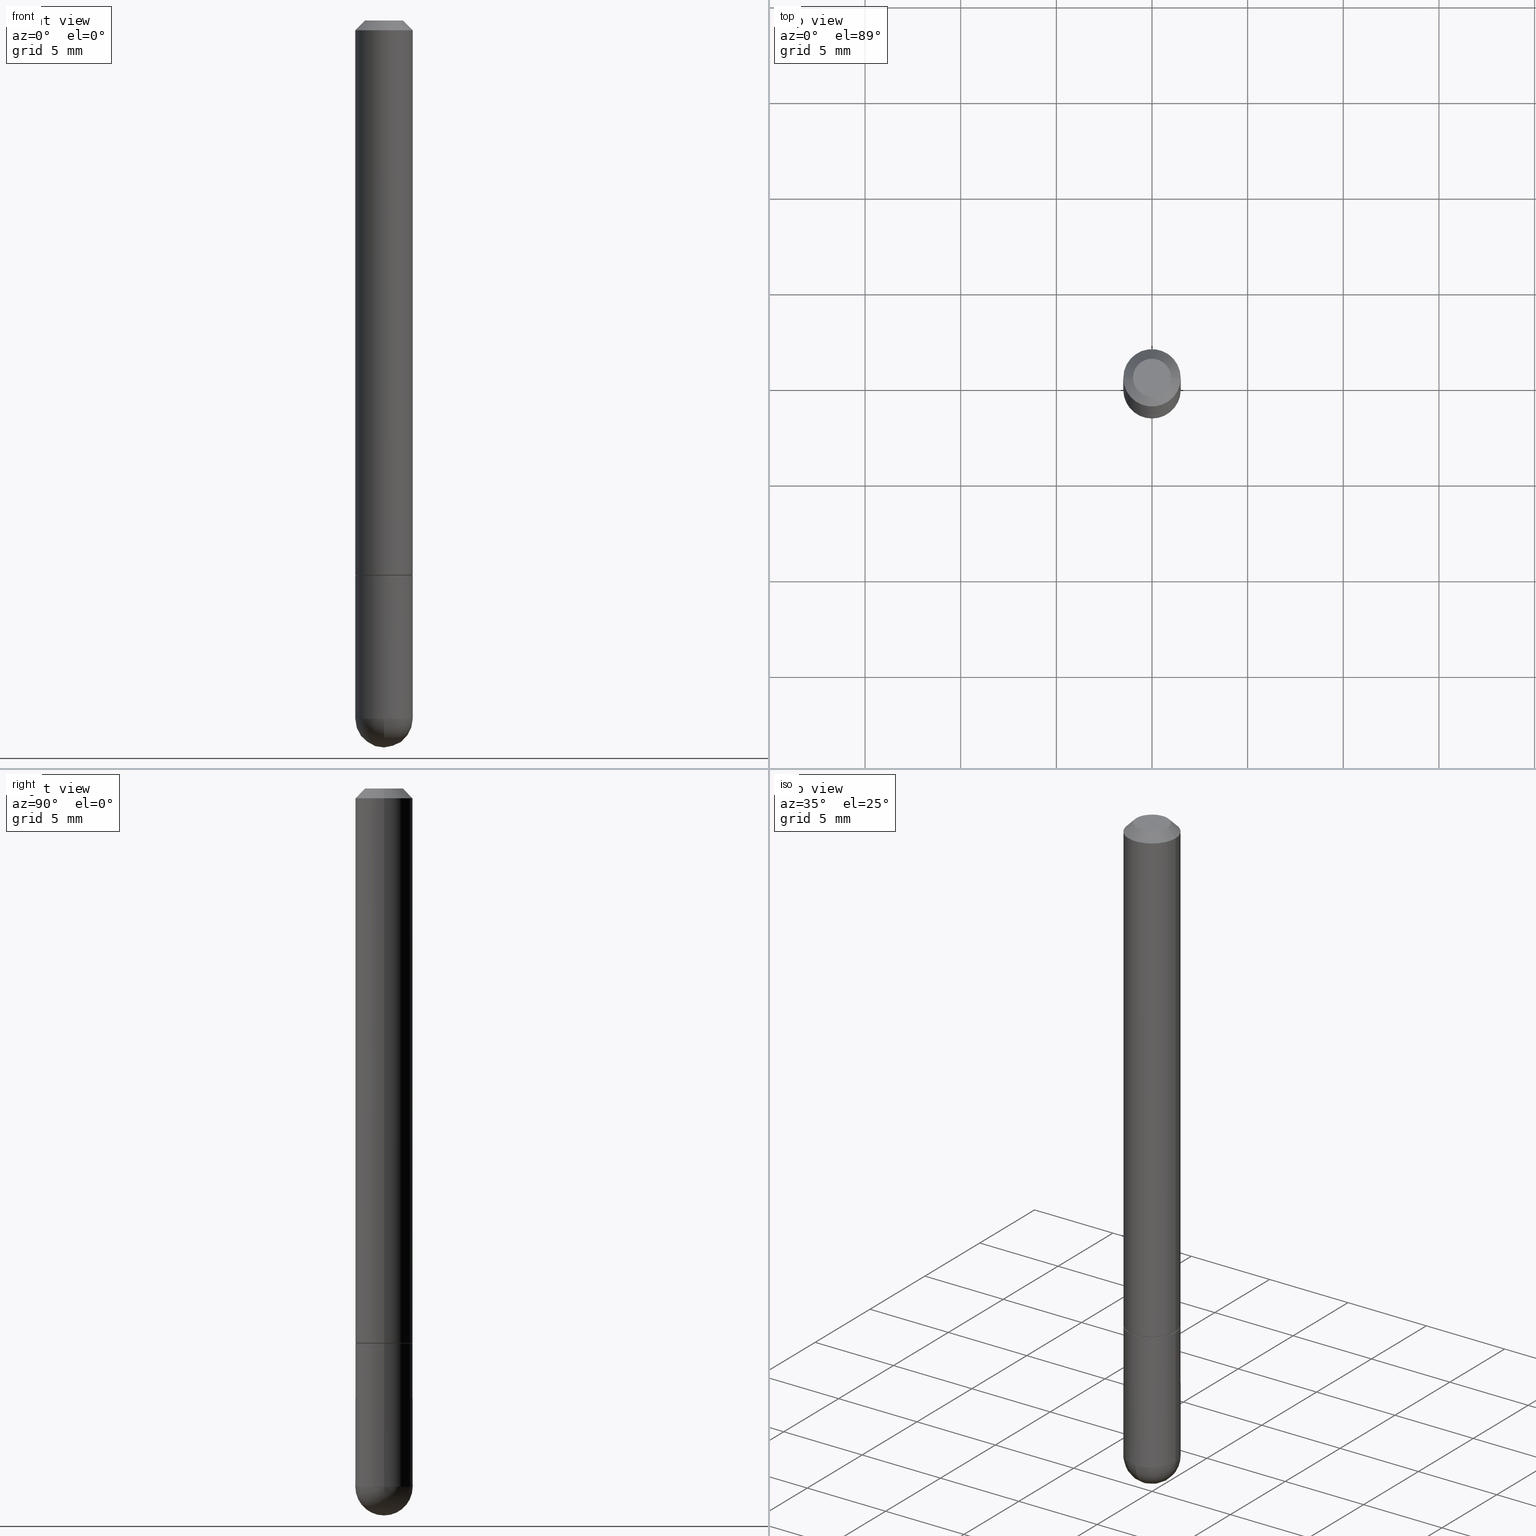
[diagram: canonical four-view strip — front | top / right | iso, engineering-drawing reading convention]
A machine part, canonical four-view strip (front | top / right | iso — engineering-drawing reading convention). The complete STEP part file that produces these views, byte-faithful:
ISO-10303-21;
HEADER;
FILE_DESCRIPTION (( 'STEP AP203' ),
    '1' );
FILE_NAME ('02959.STEP',
    '2024-02-21T16:34:42',
    ( '' ),
    ( '' ),
    'SwSTEP 2.0',
    'SolidWorks 2023',
    '' );
FILE_SCHEMA (( 'CONFIG_CONTROL_DESIGN' ));
ENDSEC;

DATA;
#1 = PLANE ( 'NONE',  #61 ) ;
#2 = CARTESIAN_POINT ( 'NONE',  ( 4.890937612370278413E-31, -6.982962677686297772E-17, -0.02000000000000002123 ) ) ;
#3 = AXIS2_PLACEMENT_3D ( 'NONE', #77, #40, #393 ) ;
#4 = DIRECTION ( 'NONE',  ( -1.000000000000000000, 6.982962677686265922E-15, -4.883557194083112340E-29 ) ) ;
#5 = DIRECTION ( 'NONE',  ( -2.445468806185136597E-29, 3.491481338843145583E-15, 1.000000000000000000 ) ) ;
#6 = EDGE_CURVE ( 'NONE', #122, #216, #210, .T. ) ;
#7 = DIRECTION ( 'NONE',  ( 1.000000000000000000, -6.982962677686272233E-15, 0.000000000000000000 ) ) ;
#8 = CC_DESIGN_PERSON_AND_ORGANIZATION_ASSIGNMENT ( #399, #182, ( #36 ) ) ;
#9 = DIRECTION ( 'NONE',  ( -0.7071067811866652564, 7.493145998870780145E-15, 0.7071067811864297781 ) ) ;
#10 = VERTEX_POINT ( 'NONE', #252 ) ;
#11 = LINE ( 'NONE', #133, #201 ) ;
#12 = DIRECTION ( 'NONE',  ( 6.982962677686266711E-15, 1.000000000000000000, 0.000000000000000000 ) ) ;
#13 = DIRECTION ( 'NONE',  ( -2.445468806185136597E-29, 3.491481338843145583E-15, 1.000000000000000000 ) ) ;
#14 = ORIENTED_EDGE ( 'NONE', *, *, #152, .T. ) ;
#15 = AXIS2_PLACEMENT_3D ( 'NONE', #45, #355, #172 ) ;
#16 = PERSON_AND_ORGANIZATION ( #22, #83 ) ;
#17 = AXIS2_PLACEMENT_3D ( 'NONE', #124, #4, #284 ) ;
#18 = DIRECTION ( 'NONE',  ( 1.000000000000000000, -6.982962677686272233E-15, 0.000000000000000000 ) ) ;
#19 = CALENDAR_DATE ( 2024, 21, 2 ) ;
#20 = ORIENTED_EDGE ( 'NONE', *, *, #155, .T. ) ;
#21 = COORDINATED_UNIVERSAL_TIME_OFFSET ( 5, 0, .BEHIND. ) ;
#22 = PERSON ( 'UNSPECIFIED', 'UNSPECIFIED', 'UNSPECIFIED', ('UNSPECIFIED'), ('UNSPECIFIED'), ('UNSPECIFIED') ) ;
#23 = ORIENTED_EDGE ( 'NONE', *, *, #278, .F. ) ;
#24 = COORDINATED_UNIVERSAL_TIME_OFFSET ( 5, 0, .BEHIND. ) ;
#25 = EDGE_LOOP ( 'NONE', ( #187, #237, #248, #20 ) ) ;
#26 = EDGE_CURVE ( 'NONE', #216, #305, #303, .T. ) ;
#27 = CALENDAR_DATE ( 2024, 21, 2 ) ;
#28 = CARTESIAN_POINT ( 'NONE',  ( 3.514260947928350449E-29, -5.017433257984542594E-15, -1.437049999999999939 ) ) ;
#29 = ORIENTED_EDGE ( 'NONE', *, *, #215, .T. ) ;
#30 = DIRECTION ( 'NONE',  ( -2.438088387897960049E-29, 3.491481338843145188E-15, 1.000000000000000000 ) ) ;
#31 = AXIS2_PLACEMENT_3D ( 'NONE', #383, #318, #253 ) ;
#32 = ADVANCED_FACE ( 'NONE', ( #184 ), #143, .T. ) ;
#33 = DIRECTION ( 'NONE',  ( -1.000000000000000000, 6.982962677686267499E-15, 0.000000000000000000 ) ) ;
#34 = DIRECTION ( 'NONE',  ( -2.445468806185136877E-29, 3.491481338843145188E-15, 1.000000000000000000 ) ) ;
#35 = FACE_OUTER_BOUND ( 'NONE', #279, .T. ) ;
#36 = PRODUCT_DEFINITION_FORMATION_WITH_SPECIFIED_SOURCE ( 'ANY', '', #251, .NOT_KNOWN. ) ;
#37 = EDGE_CURVE ( 'NONE', #122, #309, #409, .T. ) ;
#38 = AXIS2_PLACEMENT_3D ( 'NONE', #28, #306, #411 ) ;
#39 = CARTESIAN_POINT ( 'NONE',  ( -0.05905000000000001914, -4.082427839871483465E-15, -1.437049999999999939 ) ) ;
#40 = DIRECTION ( 'NONE',  ( -2.445468806185136597E-29, 3.491481338843145583E-15, 1.000000000000000000 ) ) ;
#41 = ORIENTED_EDGE ( 'NONE', *, *, #356, .T. ) ;
#42 = CARTESIAN_POINT ( 'NONE',  ( 0.03905000000000004301, -3.714222401791252845E-16, -1.280553747029901208E-17 ) ) ;
#43 = CIRCLE ( 'NONE', #359, 0.05905000000000000526 ) ;
#44 = CLOSED_SHELL ( 'NONE', ( #132, #139, #71, #32, #400, #209, #102, #232 ) ) ;
#45 = CARTESIAN_POINT ( 'NONE',  ( 0.000000000000000000, 0.000000000000000000, 0.000000000000000000 ) ) ;
#46 = EDGE_LOOP ( 'NONE', ( #337, #269, #118, #115 ) ) ;
#47 = CARTESIAN_POINT ( 'NONE',  ( 0.05905000000000006771, -4.123439461173745257E-16, 2.879382386107503723E-30 ) ) ;
#48 = CALENDAR_DATE ( 2024, 21, 2 ) ;
#49 = PLANE ( 'NONE',  #296 ) ;
#50 = ORIENTED_EDGE ( 'NONE', *, *, #51, .T. ) ;
#51 = EDGE_CURVE ( 'NONE', #299, #122, #317, .T. ) ;
#52 = CARTESIAN_POINT ( 'NONE',  ( 0.000000000000000000, 0.000000000000000000, 0.000000000000000000 ) ) ;
#53 = EDGE_CURVE ( 'NONE', #243, #156, #240, .T. ) ;
#54 = ORIENTED_EDGE ( 'NONE', *, *, #342, .T. ) ;
#55 = APPROVAL_STATUS ( 'not_yet_approved' ) ;
#56 = ORIENTED_EDGE ( 'NONE', *, *, #140, .T. ) ;
#57 = APPLICATION_PROTOCOL_DEFINITION ( 'international standard', 'config_control_design', 1994, #125 ) ;
#58 = ORIENTED_EDGE ( 'NONE', *, *, #370, .F. ) ;
#59 = APPROVAL ( #114, 'UNSPECIFIED' ) ;
#60 = PERSON_AND_ORGANIZATION ( #22, #83 ) ;
#61 = AXIS2_PLACEMENT_3D ( 'NONE', #346, #30, #194 ) ;
#62 = ORIENTED_EDGE ( 'NONE', *, *, #215, .F. ) ;
#63 = ORIENTED_EDGE ( 'NONE', *, *, #140, .F. ) ;
#64 = FACE_OUTER_BOUND ( 'NONE', #325, .T. ) ;
#65 = ADVANCED_FACE ( 'NONE', ( #35 ), #160, .T. ) ;
#66 = CARTESIAN_POINT ( 'NONE',  ( 2.789790814096003463E-29, -3.983081911352260315E-15, -1.140799999999999814 ) ) ;
#67 = AXIS2_PLACEMENT_3D ( 'NONE', #167, #298, #101 ) ;
#68 = CARTESIAN_POINT ( 'NONE',  ( 0.05804999999999999744, -4.391934376130790650E-15, -1.141799999999999704 ) ) ;
#69 = EDGE_CURVE ( 'NONE', #365, #216, #256, .T. ) ;
#70 = DIRECTION ( 'NONE',  ( 1.000000000000000000, -6.982962677686265133E-15, 0.000000000000000000 ) ) ;
#71 = ADVANCED_FACE ( 'NONE', ( #195 ), #360, .T. ) ;
#72 = DIRECTION ( 'NONE',  ( -2.445468806185136597E-29, 3.491481338843145583E-15, 1.000000000000000000 ) ) ;
#73 = PLANE ( 'NONE',  #162 ) ;
#74 = CARTESIAN_POINT ( 'NONE',  ( 3.183141170014464762E-29, -5.491615626124592102E-15, -1.437049999999999939 ) ) ;
#75 = DIRECTION ( 'NONE',  ( 1.000000000000000000, -6.982962677686272233E-15, 0.000000000000000000 ) ) ;
#76 = EDGE_LOOP ( 'NONE', ( #218, #185, #23, #120 ) ) ;
#77 = CARTESIAN_POINT ( 'NONE',  ( 0.000000000000000000, 0.000000000000000000, 0.000000000000000000 ) ) ;
#78 = ORIENTED_EDGE ( 'NONE', *, *, #26, .T. ) ;
#79 = PERSON_AND_ORGANIZATION_ROLE ( 'classification_officer' ) ;
#80 = CARTESIAN_POINT ( 'NONE',  ( 3.131554243005667043E-46, -4.471029511141352822E-32, -1.280553747030126465E-17 ) ) ;
#81 = EDGE_CURVE ( 'NONE', #310, #91, #186, .T. ) ;
#82 = MECHANICAL_CONTEXT ( 'NONE', #125, 'mechanical' ) ;
#83 = ORGANIZATION ( 'UNSPECIFIED', 'UNSPECIFIED', '' ) ;
#84 = APPROVAL_DATE_TIME ( #338, #59 ) ;
#85 = AXIS2_PLACEMENT_3D ( 'NONE', #316, #72, #95 ) ;
#86 = ORIENTED_EDGE ( 'NONE', *, *, #327, .F. ) ;
#87 = ORIENTED_EDGE ( 'NONE', *, *, #152, .F. ) ;
#88 = DATE_AND_TIME ( #371, #367 ) ;
#89 = ORIENTED_EDGE ( 'NONE', *, *, #6, .F. ) ;
#90 = CARTESIAN_POINT ( 'NONE',  ( 3.514260947928350449E-29, -5.017433257984542594E-15, -1.437049999999999939 ) ) ;
#91 = VERTEX_POINT ( 'NONE', #254 ) ;
#92 = CC_DESIGN_PERSON_AND_ORGANIZATION_ASSIGNMENT ( #214, #206, ( #126 ) ) ;
#93 = DIRECTION ( 'NONE',  ( 1.000000000000000000, -6.982962677686266711E-15, 4.878561691827482436E-29 ) ) ;
#94 = CC_DESIGN_APPROVAL ( #59, ( #36 ) ) ;
#95 = DIRECTION ( 'NONE',  ( 1.000000000000000000, -6.982962677686272233E-15, 0.000000000000000000 ) ) ;
#96 = CIRCLE ( 'NONE', #109, 0.05905000000000000526 ) ;
#97 = CARTESIAN_POINT ( 'NONE',  ( 2.792236282902187945E-29, -3.986573392691102533E-15, -1.141799999999999704 ) ) ;
#98 = CARTESIAN_POINT ( 'NONE',  ( 0.000000000000000000, 0.000000000000000000, 0.000000000000000000 ) ) ;
#99 = LINE ( 'NONE', #47, #107 ) ;
#100 = LOCAL_TIME ( 11, 34, 42.00000000000000000, #145 ) ;
#101 = DIRECTION ( 'NONE',  ( 1.000000000000000000, -6.982962677686267499E-15, 0.000000000000000000 ) ) ;
#102 = ADVANCED_FACE ( 'NONE', ( #163 ), #1, .F. ) ;
#103 = FACE_OUTER_BOUND ( 'NONE', #46, .T. ) ;
#104 = ORIENTED_EDGE ( 'NONE', *, *, #26, .F. ) ;
#105 = UNCERTAINTY_MEASURE_WITH_UNIT (LENGTH_MEASURE( 1.000000000000000082E-05 ), #188, 'distance_accuracy_value', 'NONE');
#106 = CARTESIAN_POINT ( 'NONE',  ( 2.792236282902187945E-29, -3.986573392691102533E-15, -1.141799999999999704 ) ) ;
#107 = VECTOR ( 'NONE', #174, 39.37007874015748143 ) ;
#108 = APPROVAL_DATE_TIME ( #176, #245 ) ;
#109 = AXIS2_PLACEMENT_3D ( 'NONE', #2, #5, #379 ) ;
#110 = FACE_OUTER_BOUND ( 'NONE', #136, .T. ) ;
#111 = ORIENTED_EDGE ( 'NONE', *, *, #375, .T. ) ;
#112 = SHAPE_DEFINITION_REPRESENTATION ( #247, #351 ) ;
#113 = DIRECTION ( 'NONE',  ( 2.438088387897960049E-29, -3.491481338843145188E-15, -1.000000000000000000 ) ) ;
#114 = APPROVAL_STATUS ( 'not_yet_approved' ) ;
#115 = ORIENTED_EDGE ( 'NONE', *, *, #155, .F. ) ;
#116 = DATE_AND_TIME ( #19, #249 ) ;
#117 = CIRCLE ( 'NONE', #289, 0.05904999999999999832 ) ;
#118 = ORIENTED_EDGE ( 'NONE', *, *, #407, .T. ) ;
#119 = APPLICATION_PROTOCOL_DEFINITION ( 'international standard', 'config_control_design', 1994, #347 ) ;
#120 = ORIENTED_EDGE ( 'NONE', *, *, #407, .F. ) ;
#121 = ORIENTED_EDGE ( 'NONE', *, *, #375, .F. ) ;
#122 = VERTEX_POINT ( 'NONE', #39 ) ;
#123 = FACE_OUTER_BOUND ( 'NONE', #336, .T. ) ;
#124 = CARTESIAN_POINT ( 'NONE',  ( 3.183141170014464762E-29, -5.491615626124592102E-15, -1.437049999999999939 ) ) ;
#125 = APPLICATION_CONTEXT ( 'configuration controlled 3d designs of mechanical parts and assemblies' ) ;
#126 = PRODUCT_DEFINITION ( 'UNKNOWN', '', #36, #129 ) ;
#127 = DIRECTION ( 'NONE',  ( -2.445468806185136597E-29, 3.491481338843145583E-15, 1.000000000000000000 ) ) ;
#128 = CLOSED_SHELL ( 'NONE', ( #288, #65, #385, #408, #148 ) ) ;
#129 = DESIGN_CONTEXT ( 'detailed design', #347, 'design' ) ;
#130 = DIRECTION ( 'NONE',  ( 1.000000000000000000, -6.982962677686265133E-15, 0.000000000000000000 ) ) ;
#131 = CARTESIAN_POINT ( 'NONE',  ( 2.792236282902188505E-29, -3.986573392691103322E-15, -1.141799999999999926 ) ) ;
#132 = ADVANCED_FACE ( 'NONE', ( #64 ), #354, .T. ) ;
#133 = CARTESIAN_POINT ( 'NONE',  ( 0.05905000000000000526, -4.749420335452719692E-16, -0.02000000000000002123 ) ) ;
#134 = ORIENTED_EDGE ( 'NONE', *, *, #81, .F. ) ;
#135 = DIRECTION ( 'NONE',  ( 0.7071067811865467956, -7.319954787623254468E-15, -0.7071067811865482389 ) ) ;
#136 = EDGE_LOOP ( 'NONE', ( #50, #264, #87, #63, #146 ) ) ;
#137 = CYLINDRICAL_SURFACE ( 'NONE', #15, 0.05905000000000006771 ) ;
#138 = ORIENTED_EDGE ( 'NONE', *, *, #53, .F. ) ;
#139 = ADVANCED_FACE ( 'NONE', ( #291 ), #259, .T. ) ;
#140 = EDGE_CURVE ( 'NONE', #305, #281, #222, .T. ) ;
#141 = CARTESIAN_POINT ( 'NONE',  ( 0.05804999999999999744, -4.391934376130790650E-15, -1.141799999999999704 ) ) ;
#142 = APPROVAL_DATE_TIME ( #88, #274 ) ;
#143 = CONICAL_SURFACE ( 'NONE', #270, 0.05905000000000000526, 0.7853981633974472798 ) ;
#144 = CARTESIAN_POINT ( 'NONE',  ( 0.05904999999999999832, -4.398917338808476664E-15, -1.141799999999999926 ) ) ;
#145 = COORDINATED_UNIVERSAL_TIME_OFFSET ( 5, 0, .BEHIND. ) ;
#146 = ORIENTED_EDGE ( 'NONE', *, *, #392, .T. ) ;
#147 = CALENDAR_DATE ( 2024, 21, 2 ) ;
#148 = ADVANCED_FACE ( 'NONE', ( #123 ), #191, .T. ) ;
#149 = CARTESIAN_POINT ( 'NONE',  ( -0.05905000000000000526, 3.425143193405111289E-16, -0.02000000000000002123 ) ) ;
#150 = CC_DESIGN_APPROVAL ( #245, ( #126 ) ) ;
#151 = DATE_AND_TIME ( #27, #100 ) ;
#152 = EDGE_CURVE ( 'NONE', #281, #309, #334, .T. ) ;
#153 = ORIENTED_EDGE ( 'NONE', *, *, #278, .T. ) ;
#154 = DIRECTION ( 'NONE',  ( -2.445468806185136597E-29, 3.491481338843145583E-15, 1.000000000000000000 ) ) ;
#155 = EDGE_CURVE ( 'NONE', #156, #246, #96, .T. ) ;
#156 = VERTEX_POINT ( 'NONE', #349 ) ;
#157 = AXIS2_PLACEMENT_3D ( 'NONE', #52, #244, #402 ) ;
#158 = AXIS2_PLACEMENT_3D ( 'NONE', #287, #127, #315 ) ;
#159 = CARTESIAN_POINT ( 'NONE',  ( 0.05904999999999999832, -4.123439461173740327E-16, 2.879382386107500220E-30 ) ) ;
#160 = SPHERICAL_SURFACE ( 'NONE', #17, 0.05905000000000025506 ) ;
#161 = LINE ( 'NONE', #68, #388 ) ;
#162 = AXIS2_PLACEMENT_3D ( 'NONE', #319, #113, #236 ) ;
#163 = FACE_OUTER_BOUND ( 'NONE', #178, .T. ) ;
#164 = VECTOR ( 'NONE', #376, 39.37007874015748143 ) ;
#165 = DIRECTION ( 'NONE',  ( 2.445468806185136597E-29, -3.491481338843145583E-15, -1.000000000000000000 ) ) ;
#166 = EDGE_CURVE ( 'NONE', #91, #310, #180, .T. ) ;
#167 = CARTESIAN_POINT ( 'NONE',  ( 4.890937612370278413E-31, -6.982962677686297772E-17, -0.02000000000000002123 ) ) ;
#168 = CC_DESIGN_PERSON_AND_ORGANIZATION_ASSIGNMENT ( #238, #362, ( #251 ) ) ;
#169 = AXIS2_PLACEMENT_3D ( 'NONE', #106, #13, #75 ) ;
#170 = AXIS2_PLACEMENT_3D ( 'NONE', #263, #204, #12 ) ;
#171 = LINE ( 'NONE', #203, #380 ) ;
#172 = DIRECTION ( 'NONE',  ( 1.000000000000000000, -6.982962677686266711E-15, 4.876176775795936353E-29 ) ) ;
#173 = EDGE_CURVE ( 'NONE', #398, #91, #161, .T. ) ;
#174 = DIRECTION ( 'NONE',  ( -2.445468806185136877E-29, 3.491481338843145188E-15, 1.000000000000000000 ) ) ;
#175 = ORIENTED_EDGE ( 'NONE', *, *, #173, .T. ) ;
#176 = DATE_AND_TIME ( #147, #217 ) ;
#177 = LINE ( 'NONE', #396, #382 ) ;
#178 = EDGE_LOOP ( 'NONE', ( #275, #58 ) ) ;
#179 = APPROVAL_STATUS ( 'not_yet_approved' ) ;
#180 = CIRCLE ( 'NONE', #226, 0.05905000000000013016 ) ;
#181 = DIRECTION ( 'NONE',  ( 1.000000000000000000, -6.982962677686272233E-15, 0.000000000000000000 ) ) ;
#182 = PERSON_AND_ORGANIZATION_ROLE ( 'creator' ) ;
#183 = EDGE_CURVE ( 'NONE', #243, #311, #324, .T. ) ;
#184 = FACE_OUTER_BOUND ( 'NONE', #25, .T. ) ;
#185 = ORIENTED_EDGE ( 'NONE', *, *, #221, .T. ) ;
#186 = CIRCLE ( 'NONE', #250, 0.05905000000000013016 ) ;
#187 = ORIENTED_EDGE ( 'NONE', *, *, #356, .F. ) ;
#188 =( CONVERSION_BASED_UNIT ( 'INCH', #410 ) LENGTH_UNIT ( ) NAMED_UNIT ( #350 ) );
#189 = CC_DESIGN_DATE_AND_TIME_ASSIGNMENT ( #116, #405, ( #126 ) ) ;
#190 = ORIENTED_EDGE ( 'NONE', *, *, #392, .F. ) ;
#191 = CYLINDRICAL_SURFACE ( 'NONE', #158, 0.05904999999999999832 ) ;
#192 = AXIS2_PLACEMENT_3D ( 'NONE', #97, #353, #7 ) ;
#193 = FACE_OUTER_BOUND ( 'NONE', #208, .T. ) ;
#194 = DIRECTION ( 'NONE',  ( 1.000000000000000000, -6.982962677686265922E-15, 4.876176775795935793E-29 ) ) ;
#195 = FACE_OUTER_BOUND ( 'NONE', #339, .T. ) ;
#196 = CARTESIAN_POINT ( 'NONE',  ( 2.792236282902188505E-29, -3.986573392691103322E-15, -1.141799999999999926 ) ) ;
#197 = CARTESIAN_POINT ( 'NONE',  ( 4.123439461174083974E-16, 0.05904999999999487742, -1.437050000000000161 ) ) ;
#198 = CARTESIAN_POINT ( 'NONE',  ( 3.514260947928350449E-29, -5.017433257984542594E-15, -1.437049999999999939 ) ) ;
#199 = ORIENTED_EDGE ( 'NONE', *, *, #294, .T. ) ;
#200 = DIRECTION ( 'NONE',  ( -2.445468806185136877E-29, 3.491481338843145188E-15, 1.000000000000000000 ) ) ;
#201 = VECTOR ( 'NONE', #135, 39.37007874015748143 ) ;
#202 = VECTOR ( 'NONE', #403, 39.37007874015748143 ) ;
#203 = CARTESIAN_POINT ( 'NONE',  ( -0.05804999999999999744, -3.574103334582364048E-15, -1.141799999999999704 ) ) ;
#204 = DIRECTION ( 'NONE',  ( 1.000000000000000000, -6.982962677686265922E-15, 4.883557194083112340E-29 ) ) ;
#205 = CIRCLE ( 'NONE', #169, 0.05804999999999999744 ) ;
#206 = PERSON_AND_ORGANIZATION_ROLE ( 'creator' ) ;
#207 = APPROVAL_PERSON_ORGANIZATION ( #366, #59, #271 ) ;
#208 = EDGE_LOOP ( 'NONE', ( #328, #273, #175, #134 ) ) ;
#209 = ADVANCED_FACE ( 'NONE', ( #193 ), #340, .T. ) ;
#210 = CIRCLE ( 'NONE', #38, 0.05905000000000000526 ) ;
#211 = ORIENTED_EDGE ( 'NONE', *, *, #69, .T. ) ;
#212 = ORIENTED_EDGE ( 'NONE', *, *, #69, .F. ) ;
#213 = AXIS2_PLACEMENT_3D ( 'NONE', #80, #231, #357 ) ;
#214 = PERSON_AND_ORGANIZATION ( #22, #83 ) ;
#215 = EDGE_CURVE ( 'NONE', #309, #281, #117, .T. ) ;
#216 = VERTEX_POINT ( 'NONE', #312 ) ;
#217 = LOCAL_TIME ( 11, 34, 42.00000000000000000, #24 ) ;
#218 = ORIENTED_EDGE ( 'NONE', *, *, #166, .T. ) ;
#219 = DIRECTION ( 'NONE',  ( 1.000000000000000000, -6.982962677686265133E-15, 0.000000000000000000 ) ) ;
#220 = AXIS2_PLACEMENT_3D ( 'NONE', #272, #233, #297 ) ;
#221 = EDGE_CURVE ( 'NONE', #310, #156, #177, .T. ) ;
#222 = LINE ( 'NONE', #159, #283 ) ;
#223 = DIRECTION ( 'NONE',  ( -2.445468806185136597E-29, 3.491481338843145583E-15, 1.000000000000000000 ) ) ;
#224 = CARTESIAN_POINT ( 'NONE',  ( 3.131554243005667043E-46, -4.471029511141352822E-32, -1.280553747030126465E-17 ) ) ;
#225 = FACE_OUTER_BOUND ( 'NONE', #266, .T. ) ;
#226 = AXIS2_PLACEMENT_3D ( 'NONE', #66, #258, #257 ) ;
#227 = CYLINDRICAL_SURFACE ( 'NONE', #3, 0.05904999999999999832 ) ;
#228 = ORIENTED_EDGE ( 'NONE', *, *, #51, .F. ) ;
#229 = CARTESIAN_POINT ( 'NONE',  ( -0.03905000000000004301, 3.075995059520800222E-16, -1.280553747030329227E-17 ) ) ;
#230 = EDGE_LOOP ( 'NONE', ( #321, #234 ) ) ;
#231 = DIRECTION ( 'NONE',  ( -2.445468806185136597E-29, 3.491481338843145583E-15, 1.000000000000000000 ) ) ;
#232 = ADVANCED_FACE ( 'NONE', ( #268 ), #49, .F. ) ;
#233 = DIRECTION ( 'NONE',  ( -2.445468806185136597E-29, 3.491481338843145583E-15, 1.000000000000000000 ) ) ;
#234 = ORIENTED_EDGE ( 'NONE', *, *, #327, .T. ) ;
#235 = PERSON_AND_ORGANIZATION ( #22, #83 ) ;
#236 = DIRECTION ( 'NONE',  ( -1.000000000000000000, 6.982962677686265922E-15, -4.876176775795935793E-29 ) ) ;
#237 = ORIENTED_EDGE ( 'NONE', *, *, #183, .F. ) ;
#238 = PERSON_AND_ORGANIZATION ( #22, #83 ) ;
#239 = APPROVAL_PERSON_ORGANIZATION ( #277, #274, #373 ) ;
#240 = LINE ( 'NONE', #149, #202 ) ;
#241 = SECURITY_CLASSIFICATION_LEVEL ( 'unclassified' ) ;
#242 = CIRCLE ( 'NONE', #67, 0.05905000000000000526 ) ;
#243 = VERTEX_POINT ( 'NONE', #229 ) ;
#244 = DIRECTION ( 'NONE',  ( 0.000000000000000000, 0.000000000000000000, 1.000000000000000000 ) ) ;
#245 = APPROVAL ( #55, 'UNSPECIFIED' ) ;
#246 = VERTEX_POINT ( 'NONE', #363 ) ;
#247 = PRODUCT_DEFINITION_SHAPE ( 'NONE', 'NONE',  #126 ) ;
#248 = ORIENTED_EDGE ( 'NONE', *, *, #53, .T. ) ;
#249 = LOCAL_TIME ( 11, 34, 42.00000000000000000, #21 ) ;
#250 = AXIS2_PLACEMENT_3D ( 'NONE', #352, #384, #130 ) ;
#251 = PRODUCT ( '02959', '02959', '', ( #82 ) ) ;
#252 = CARTESIAN_POINT ( 'NONE',  ( -0.05804999999999999744, -3.568804880234141646E-15, -1.141799999999999704 ) ) ;
#253 = DIRECTION ( 'NONE',  ( -7.105427357601001070E-15, -1.000000000000000000, 0.000000000000000000 ) ) ;
#254 = CARTESIAN_POINT ( 'NONE',  ( 0.05905000000000013016, -4.395425857469635235E-15, -1.140799999999999814 ) ) ;
#255 = CC_DESIGN_APPROVAL ( #274, ( #260 ) ) ;
#256 = CIRCLE ( 'NONE', #31, 0.05905000000000025506 ) ;
#257 = DIRECTION ( 'NONE',  ( 1.000000000000000000, -6.982962677686265133E-15, 0.000000000000000000 ) ) ;
#258 = DIRECTION ( 'NONE',  ( -2.445468806185136597E-29, 3.491481338843145583E-15, 1.000000000000000000 ) ) ;
#259 = CYLINDRICAL_SURFACE ( 'NONE', #404, 0.05905000000000006771 ) ;
#260 = SECURITY_CLASSIFICATION ( '', '', #241 ) ;
#261 = SPHERICAL_SURFACE ( 'NONE', #332, 0.05905000000000025506 ) ;
#262 = AXIS2_PLACEMENT_3D ( 'NONE', #224, #223, #93 ) ;
#263 = CARTESIAN_POINT ( 'NONE',  ( 3.183141170014464762E-29, -5.491615626124592102E-15, -1.437049999999999939 ) ) ;
#264 = ORIENTED_EDGE ( 'NONE', *, *, #37, .T. ) ;
#265 = CARTESIAN_POINT ( 'NONE',  ( 3.330070981488499955E-29, -5.694171829508798064E-15, -1.496100000000000207 ) ) ;
#266 = EDGE_LOOP ( 'NONE', ( #14, #29 ) ) ;
#267 = LOCAL_TIME ( 11, 34, 42.00000000000000000, #300 ) ;
#268 = FACE_OUTER_BOUND ( 'NONE', #230, .T. ) ;
#269 = ORIENTED_EDGE ( 'NONE', *, *, #81, .T. ) ;
#270 = AXIS2_PLACEMENT_3D ( 'NONE', #368, #341, #333 ) ;
#271 = APPROVAL_ROLE ( '' ) ;
#272 = CARTESIAN_POINT ( 'NONE',  ( 2.792236282902187945E-29, -3.986573392691102533E-15, -1.141799999999999704 ) ) ;
#273 = ORIENTED_EDGE ( 'NONE', *, *, #370, .T. ) ;
#274 = APPROVAL ( #179, 'UNSPECIFIED' ) ;
#275 = ORIENTED_EDGE ( 'NONE', *, *, #294, .F. ) ;
#276 = CARTESIAN_POINT ( 'NONE',  ( -0.05904999999999999832, 4.195754854663391478E-16, -2.904631170795521892E-30 ) ) ;
#277 = PERSON_AND_ORGANIZATION ( #22, #83 ) ;
#278 = EDGE_CURVE ( 'NONE', #246, #156, #242, .T. ) ;
#279 = EDGE_LOOP ( 'NONE', ( #121, #211, #89, #228 ) ) ;
#280 = DIRECTION ( 'NONE',  ( 1.000000000000000000, -6.982962677686272233E-15, 0.000000000000000000 ) ) ;
#281 = VERTEX_POINT ( 'NONE', #144 ) ;
#282 = CIRCLE ( 'NONE', #170, 0.05905000000000025506 ) ;
#283 = VECTOR ( 'NONE', #34, 39.37007874015748143 ) ;
#284 = DIRECTION ( 'NONE',  ( 6.982962677686265922E-15, 1.000000000000000000, -4.626330217890349615E-15 ) ) ;
#285 = CC_DESIGN_PERSON_AND_ORGANIZATION_ASSIGNMENT ( #60, #397, ( #36 ) ) ;
#286 = DIRECTION ( 'NONE',  ( -2.445468806185136597E-29, 3.491481338843145583E-15, 1.000000000000000000 ) ) ;
#287 = CARTESIAN_POINT ( 'NONE',  ( 0.000000000000000000, 0.000000000000000000, 0.000000000000000000 ) ) ;
#288 = ADVANCED_FACE ( 'NONE', ( #110 ), #227, .T. ) ;
#289 = AXIS2_PLACEMENT_3D ( 'NONE', #131, #386, #219 ) ;
#290 = DIRECTION ( 'NONE',  ( 1.000000000000000000, -6.982962677686266711E-15, 4.876176775795936353E-29 ) ) ;
#291 = FACE_OUTER_BOUND ( 'NONE', #76, .T. ) ;
#292 = DIRECTION ( 'NONE',  ( -1.000000000000000000, 6.982962677686265922E-15, -4.876176775795935793E-29 ) ) ;
#293 =( NAMED_UNIT ( * ) PLANE_ANGLE_UNIT ( ) SI_UNIT ( $, .RADIAN. ) );
#294 = EDGE_CURVE ( 'NONE', #398, #10, #205, .T. ) ;
#295 = CARTESIAN_POINT ( 'NONE',  ( -0.05904999999999999832, -4.082427839871483465E-15, -1.141799999999999926 ) ) ;
#296 = AXIS2_PLACEMENT_3D ( 'NONE', #320, #358, #292 ) ;
#297 = DIRECTION ( 'NONE',  ( 1.000000000000000000, -6.982962677686272233E-15, 0.000000000000000000 ) ) ;
#298 = DIRECTION ( 'NONE',  ( -2.445468806185136597E-29, 3.491481338843145583E-15, 1.000000000000000000 ) ) ;
#299 = VERTEX_POINT ( 'NONE', #197 ) ;
#300 = COORDINATED_UNIVERSAL_TIME_OFFSET ( 5, 0, .BEHIND. ) ;
#301 = DIRECTION ( 'NONE',  ( 6.982962677686265922E-15, 1.000000000000000000, -4.626330217890349615E-15 ) ) ;
#302 = ORIENTED_EDGE ( 'NONE', *, *, #166, .F. ) ;
#303 = CIRCLE ( 'NONE', #348, 0.05905000000000000526 ) ;
#304 = COORDINATED_UNIVERSAL_TIME_OFFSET ( 5, 0, .BEHIND. ) ;
#305 = VERTEX_POINT ( 'NONE', #323 ) ;
#306 = DIRECTION ( 'NONE',  ( -2.445468806185136597E-29, 3.491481338843145583E-15, 1.000000000000000000 ) ) ;
#307 = APPROVAL_ROLE ( '' ) ;
#308 = APPROVAL_PERSON_ORGANIZATION ( #235, #245, #307 ) ;
#309 = VERTEX_POINT ( 'NONE', #295 ) ;
#310 = VERTEX_POINT ( 'NONE', #326 ) ;
#311 = VERTEX_POINT ( 'NONE', #42 ) ;
#312 = CARTESIAN_POINT ( 'NONE',  ( -4.195754854663065087E-16, -0.05905000000000538291, -1.437049999999999716 ) ) ;
#313 = AXIS2_PLACEMENT_3D ( 'NONE', #90, #401, #181 ) ;
#314 = DIRECTION ( 'NONE',  ( 0.7071067811866652564, -2.468850131083490445E-15, 0.7071067811864297781 ) ) ;
#315 = DIRECTION ( 'NONE',  ( 1.000000000000000000, -6.982962677686266711E-15, 4.876176775795936353E-29 ) ) ;
#316 = CARTESIAN_POINT ( 'NONE',  ( 2.792236282902187945E-29, -3.986573392691102533E-15, -1.141799999999999704 ) ) ;
#317 = CIRCLE ( 'NONE', #313, 0.05905000000000000526 ) ;
#318 = DIRECTION ( 'NONE',  ( -1.000000000000000000, 7.105427357601001070E-15, -4.926315508542082329E-29 ) ) ;
#319 = CARTESIAN_POINT ( 'NONE',  ( 4.123439461174018893E-16, 0.05904999999999601540, -1.141800000000000148 ) ) ;
#320 = CARTESIAN_POINT ( 'NONE',  ( 2.726846925636489647E-16, 0.03905000000000004301, -1.427451150169756154E-16 ) ) ;
#321 = ORIENTED_EDGE ( 'NONE', *, *, #183, .T. ) ;
#322 = CC_DESIGN_SECURITY_CLASSIFICATION ( #260, ( #36 ) ) ;
#323 = CARTESIAN_POINT ( 'NONE',  ( 0.05905000000000001914, -4.914347271455197089E-15, -1.437049999999999939 ) ) ;
#324 = CIRCLE ( 'NONE', #262, 0.03905000000000004301 ) ;
#325 = EDGE_LOOP ( 'NONE', ( #199, #54, #302, #389 ) ) ;
#326 = CARTESIAN_POINT ( 'NONE',  ( -0.05905000000000013710, -1.606880283598219355E-15, -1.140799999999999814 ) ) ;
#327 = EDGE_CURVE ( 'NONE', #311, #243, #391, .T. ) ;
#328 = ORIENTED_EDGE ( 'NONE', *, *, #342, .F. ) ;
#329 = CC_DESIGN_PERSON_AND_ORGANIZATION_ASSIGNMENT ( #16, #79, ( #260 ) ) ;
#330 =( NAMED_UNIT ( * ) SI_UNIT ( $, .STERADIAN. ) SOLID_ANGLE_UNIT ( ) );
#331 = FACE_OUTER_BOUND ( 'NONE', #372, .T. ) ;
#332 = AXIS2_PLACEMENT_3D ( 'NONE', #74, #390, #301 ) ;
#333 = DIRECTION ( 'NONE',  ( -1.000000000000000000, 6.982962677686267499E-15, 0.000000000000000000 ) ) ;
#334 = CIRCLE ( 'NONE', #369, 0.05904999999999999832 ) ;
#335 = DATE_TIME_ROLE ( 'classification_date' ) ;
#336 = EDGE_LOOP ( 'NONE', ( #374, #406, #78, #56, #62 ) ) ;
#337 = ORIENTED_EDGE ( 'NONE', *, *, #221, .F. ) ;
#338 = DATE_AND_TIME ( #48, #267 ) ;
#339 = EDGE_LOOP ( 'NONE', ( #86, #41, #153, #138 ) ) ;
#340 = CONICAL_SURFACE ( 'NONE', #192, 0.05804999999999999744, 0.7853981633976148125 ) ;
#341 = DIRECTION ( 'NONE',  ( 2.445468806185136597E-29, -3.491481338843145583E-15, -1.000000000000000000 ) ) ;
#342 = EDGE_CURVE ( 'NONE', #10, #310, #171, .T. ) ;
#343 = DIRECTION ( 'NONE',  ( -2.445468806185136597E-29, 3.491481338843145583E-15, 1.000000000000000000 ) ) ;
#344 = MANIFOLD_SOLID_BREP ( 'Body-Move/Copy2[2]', #44 ) ;
#345 = MANIFOLD_SOLID_BREP ( 'Body-Move/Copy2[1]', #128 ) ;
#346 = CARTESIAN_POINT ( 'NONE',  ( 2.792236282902188505E-29, -3.986573392691103322E-15, -1.141799999999999926 ) ) ;
#347 = APPLICATION_CONTEXT ( 'configuration controlled 3d designs of mechanical parts and assemblies' ) ;
#348 = AXIS2_PLACEMENT_3D ( 'NONE', #378, #154, #280 ) ;
#349 = CARTESIAN_POINT ( 'NONE',  ( -0.05905000000000000526, 3.425143193405111289E-16, -0.02000000000000002123 ) ) ;
#350 = DIMENSIONAL_EXPONENTS ( 1.000000000000000000, 0.000000000000000000, 0.000000000000000000, 0.000000000000000000, 0.000000000000000000, 0.000000000000000000, 0.000000000000000000 ) ;
#351 = ADVANCED_BREP_SHAPE_REPRESENTATION ( '02959', ( #345, #344, #157 ), #394 ) ;
#352 = CARTESIAN_POINT ( 'NONE',  ( 2.789790814096003463E-29, -3.983081911352260315E-15, -1.140799999999999814 ) ) ;
#353 = DIRECTION ( 'NONE',  ( -2.445468806185136597E-29, 3.491481338843145583E-15, 1.000000000000000000 ) ) ;
#354 = CONICAL_SURFACE ( 'NONE', #85, 0.05804999999999999744, 0.7853981633976148125 ) ;
#355 = DIRECTION ( 'NONE',  ( -2.445468806185136597E-29, 3.491481338843145583E-15, 1.000000000000000000 ) ) ;
#356 = EDGE_CURVE ( 'NONE', #311, #246, #11, .T. ) ;
#357 = DIRECTION ( 'NONE',  ( 1.000000000000000000, -6.982962677686266711E-15, 4.878561691827482436E-29 ) ) ;
#358 = DIRECTION ( 'NONE',  ( 2.438088387897960049E-29, -3.491481338843145188E-15, -1.000000000000000000 ) ) ;
#359 = AXIS2_PLACEMENT_3D ( 'NONE', #198, #361, #18 ) ;
#360 = CONICAL_SURFACE ( 'NONE', #412, 0.05905000000000000526, 0.7853981633974472798 ) ;
#361 = DIRECTION ( 'NONE',  ( -2.445468806185136597E-29, 3.491481338843145583E-15, 1.000000000000000000 ) ) ;
#362 = PERSON_AND_ORGANIZATION_ROLE ( 'design_owner' ) ;
#363 = CARTESIAN_POINT ( 'NONE',  ( 0.05905000000000000526, -4.749420335452719692E-16, -0.02000000000000002123 ) ) ;
#364 =( LENGTH_UNIT ( ) NAMED_UNIT ( * ) SI_UNIT ( $, .METRE. ) );
#365 = VERTEX_POINT ( 'NONE', #265 ) ;
#366 = PERSON_AND_ORGANIZATION ( #22, #83 ) ;
#367 = LOCAL_TIME ( 11, 34, 42.00000000000000000, #304 ) ;
#368 = CARTESIAN_POINT ( 'NONE',  ( 4.890937612370278413E-31, -6.982962677686297772E-17, -0.02000000000000002123 ) ) ;
#369 = AXIS2_PLACEMENT_3D ( 'NONE', #196, #343, #70 ) ;
#370 = EDGE_CURVE ( 'NONE', #10, #398, #395, .T. ) ;
#371 = CALENDAR_DATE ( 2024, 21, 2 ) ;
#372 = EDGE_LOOP ( 'NONE', ( #212, #111, #190, #104 ) ) ;
#373 = APPROVAL_ROLE ( '' ) ;
#374 = ORIENTED_EDGE ( 'NONE', *, *, #37, .F. ) ;
#375 = EDGE_CURVE ( 'NONE', #365, #299, #282, .T. ) ;
#376 = DIRECTION ( 'NONE',  ( -2.445468806185136877E-29, 3.491481338843145188E-15, 1.000000000000000000 ) ) ;
#377 = PRODUCT_RELATED_PRODUCT_CATEGORY ( 'detail', '', ( #251 ) ) ;
#378 = CARTESIAN_POINT ( 'NONE',  ( 3.514260947928350449E-29, -5.017433257984542594E-15, -1.437049999999999939 ) ) ;
#379 = DIRECTION ( 'NONE',  ( 1.000000000000000000, -6.982962677686267499E-15, 0.000000000000000000 ) ) ;
#380 = VECTOR ( 'NONE', #9, 39.37007874015748143 ) ;
#381 = CARTESIAN_POINT ( 'NONE',  ( 4.890937612370278413E-31, -6.982962677686297772E-17, -0.02000000000000002123 ) ) ;
#382 = VECTOR ( 'NONE', #200, 39.37007874015748143 ) ;
#383 = CARTESIAN_POINT ( 'NONE',  ( 3.183141170014464762E-29, -5.491615626124592102E-15, -1.437049999999999939 ) ) ;
#384 = DIRECTION ( 'NONE',  ( -2.445468806185136597E-29, 3.491481338843145583E-15, 1.000000000000000000 ) ) ;
#385 = ADVANCED_FACE ( 'NONE', ( #331 ), #261, .T. ) ;
#386 = DIRECTION ( 'NONE',  ( -2.445468806185136597E-29, 3.491481338843145583E-15, 1.000000000000000000 ) ) ;
#387 = CC_DESIGN_DATE_AND_TIME_ASSIGNMENT ( #151, #335, ( #260 ) ) ;
#388 = VECTOR ( 'NONE', #314, 39.37007874015748143 ) ;
#389 = ORIENTED_EDGE ( 'NONE', *, *, #173, .F. ) ;
#390 = DIRECTION ( 'NONE',  ( -1.000000000000000000, 6.982962677686265922E-15, -4.883557194083112340E-29 ) ) ;
#391 = CIRCLE ( 'NONE', #213, 0.03905000000000004301 ) ;
#392 = EDGE_CURVE ( 'NONE', #305, #299, #43, .T. ) ;
#393 = DIRECTION ( 'NONE',  ( 1.000000000000000000, -6.982962677686266711E-15, 4.876176775795936353E-29 ) ) ;
#394 =( GEOMETRIC_REPRESENTATION_CONTEXT ( 3 ) GLOBAL_UNCERTAINTY_ASSIGNED_CONTEXT ( ( #105 ) ) GLOBAL_UNIT_ASSIGNED_CONTEXT ( ( #188, #293, #330 ) ) REPRESENTATION_CONTEXT ( 'NONE', 'WORKASPACE' ) );
#395 = CIRCLE ( 'NONE', #220, 0.05804999999999999744 ) ;
#396 = CARTESIAN_POINT ( 'NONE',  ( -0.05905000000000006771, 4.195754854663396409E-16, -2.904631170795525045E-30 ) ) ;
#397 = PERSON_AND_ORGANIZATION_ROLE ( 'design_supplier' ) ;
#398 = VERTEX_POINT ( 'NONE', #141 ) ;
#399 = PERSON_AND_ORGANIZATION ( #22, #83 ) ;
#400 = ADVANCED_FACE ( 'NONE', ( #103 ), #137, .T. ) ;
#401 = DIRECTION ( 'NONE',  ( -2.445468806185136597E-29, 3.491481338843145583E-15, 1.000000000000000000 ) ) ;
#402 = DIRECTION ( 'NONE',  ( 1.000000000000000000, 0.000000000000000000, 0.000000000000000000 ) ) ;
#403 = DIRECTION ( 'NONE',  ( -0.7071067811865467956, 2.468850131082249172E-15, -0.7071067811865482389 ) ) ;
#404 = AXIS2_PLACEMENT_3D ( 'NONE', #98, #286, #290 ) ;
#405 = DATE_TIME_ROLE ( 'creation_date' ) ;
#406 = ORIENTED_EDGE ( 'NONE', *, *, #6, .T. ) ;
#407 = EDGE_CURVE ( 'NONE', #91, #246, #99, .T. ) ;
#408 = ADVANCED_FACE ( 'NONE', ( #225 ), #73, .F. ) ;
#409 = LINE ( 'NONE', #276, #164 ) ;
#410 = LENGTH_MEASURE_WITH_UNIT ( LENGTH_MEASURE( 0.02539999999999999897 ), #364 );
#411 = DIRECTION ( 'NONE',  ( 1.000000000000000000, -6.982962677686272233E-15, 0.000000000000000000 ) ) ;
#412 = AXIS2_PLACEMENT_3D ( 'NONE', #381, #165, #33 ) ;
ENDSEC;
END-ISO-10303-21;
